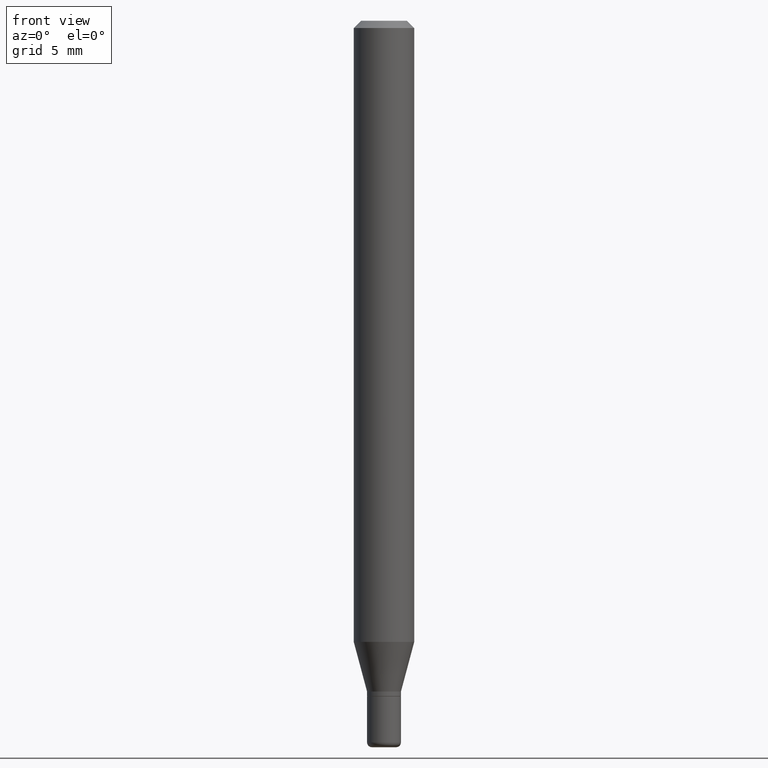
[diagram: clean part render]
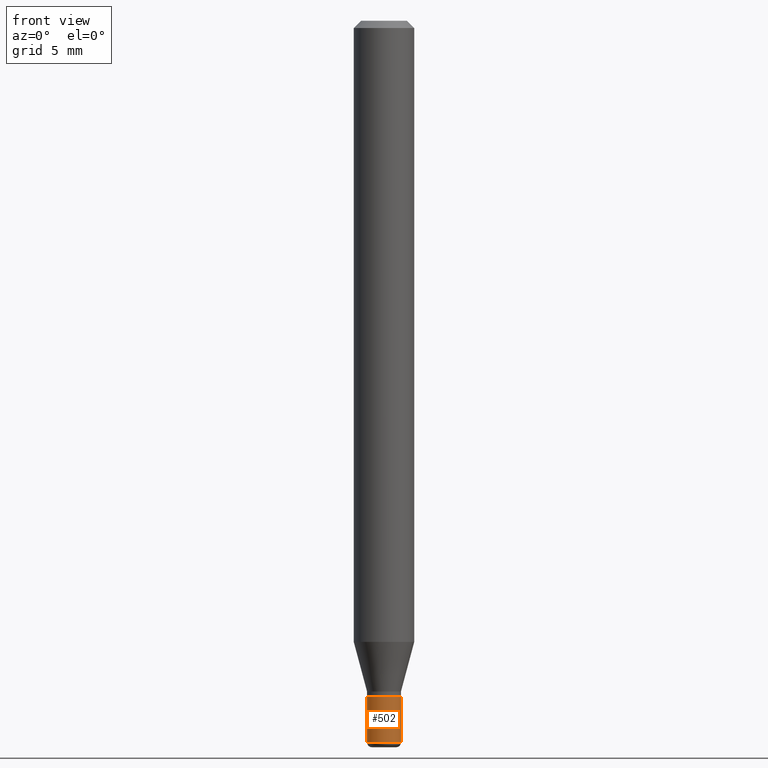
[diagram: same view with one face highlighted and labeled with its STEP entity id]
A machine part, front view. The second image highlights one B-rep face of the part: STEP entity #502.
In plain terms, the highlighted cylindrical surface (edge-blend (fillet) strip) has radius 0.889 mm, axis along (-0, 0, 1).
Its self-contained STEP definition (entity closure, byte-faithful):
#3 = ORIENTED_EDGE ( 'NONE', *, *, #167, .T. ) ;
#20 = VERTEX_POINT ( 'NONE', #302 ) ;
#51 = CARTESIAN_POINT ( 'NONE',  ( 3.411428984628265351E-29, -4.870616467686188228E-15, -1.395000000000000018 ) ) ;
#52 = CIRCLE ( 'NONE', #517, 0.03500000000000000333 ) ;
#59 = ORIENTED_EDGE ( 'NONE', *, *, #402, .T. ) ;
#64 = ORIENTED_EDGE ( 'NONE', *, *, #516, .F. ) ;
#80 = CARTESIAN_POINT ( 'NONE',  ( -0.03499999999999999639, -4.787771873765202881E-15, -1.395000000000000018 ) ) ;
#83 = EDGE_CURVE ( 'NONE', #333, #360, #147, .T. ) ;
#111 = DIRECTION ( 'NONE',  ( -2.445468806185136597E-29, 3.491481338843145583E-15, 1.000000000000000000 ) ) ;
#129 = DIRECTION ( 'NONE',  ( -2.445468806185136597E-29, 3.491481338843145583E-15, 1.000000000000000000 ) ) ;
#147 = LINE ( 'NONE', #379, #262 ) ;
#166 = VERTEX_POINT ( 'NONE', #499 ) ;
#167 = EDGE_CURVE ( 'NONE', #166, #20, #457, .T. ) ;
#169 = CIRCLE ( 'NONE', #440, 0.03499999999999994782 ) ;
#259 = CARTESIAN_POINT ( 'NONE',  ( -0.03499999999999994782, -4.787771873765202881E-15, -1.490000000000000213 ) ) ;
#262 = VECTOR ( 'NONE', #305, 39.37007874015748143 ) ;
#302 = CARTESIAN_POINT ( 'NONE',  ( 0.03500000000000000333, -5.115020161405208194E-15, -1.395000000000000018 ) ) ;
#305 = DIRECTION ( 'NONE',  ( -2.445468806185136877E-29, 3.491481338843145188E-15, 1.000000000000000000 ) ) ;
#309 = CARTESIAN_POINT ( 'NONE',  ( 0.03499999999999997558, -2.444036937190191771E-16, 1.706661871528576406E-30 ) ) ;
#317 = CARTESIAN_POINT ( 'NONE',  ( 3.643748521215853910E-29, -5.202307194876288105E-15, -1.490000000000000213 ) ) ;
#322 = VECTOR ( 'NONE', #462, 39.37007874015748143 ) ;
#331 = DIRECTION ( 'NONE',  ( 1.000000000000000000, -6.982962677686266711E-15, 4.876176775795935793E-29 ) ) ;
#333 = VERTEX_POINT ( 'NONE', #259 ) ;
#347 = ORIENTED_EDGE ( 'NONE', *, *, #83, .F. ) ;
#357 = DIRECTION ( 'NONE',  ( -2.445468806185136597E-29, 3.491481338843145583E-15, 1.000000000000000000 ) ) ;
#360 = VERTEX_POINT ( 'NONE', #80 ) ;
#363 = CARTESIAN_POINT ( 'NONE',  ( 0.000000000000000000, 0.000000000000000000, 0.000000000000000000 ) ) ;
#379 = CARTESIAN_POINT ( 'NONE',  ( -0.03499999999999997558, 2.486899575160348915E-16, -1.721627281589215706E-30 ) ) ;
#402 = EDGE_CURVE ( 'NONE', #333, #166, #169, .T. ) ;
#406 = AXIS2_PLACEMENT_3D ( 'NONE', #363, #357, #331 ) ;
#434 = DIRECTION ( 'NONE',  ( 1.000000000000000000, -6.982962677686276966E-15, 0.000000000000000000 ) ) ;
#438 = CYLINDRICAL_SURFACE ( 'NONE', #406, 0.03499999999999997558 ) ;
#440 = AXIS2_PLACEMENT_3D ( 'NONE', #317, #111, #498 ) ;
#445 = EDGE_LOOP ( 'NONE', ( #347, #59, #3, #64 ) ) ;
#457 = LINE ( 'NONE', #309, #322 ) ;
#462 = DIRECTION ( 'NONE',  ( -2.445468806185136877E-29, 3.491481338843145188E-15, 1.000000000000000000 ) ) ;
#481 = FACE_OUTER_BOUND ( 'NONE', #445, .T. ) ;
#498 = DIRECTION ( 'NONE',  ( 1.000000000000000000, -6.982962677686259611E-15, 0.000000000000000000 ) ) ;
#499 = CARTESIAN_POINT ( 'NONE',  ( 0.03499999999999994782, -5.446710888595306494E-15, -1.490000000000000213 ) ) ;
#502 = ADVANCED_FACE ( 'NONE', ( #481 ), #438, .T. ) ;
#516 = EDGE_CURVE ( 'NONE', #360, #20, #52, .T. ) ;
#517 = AXIS2_PLACEMENT_3D ( 'NONE', #51, #129, #434 ) ;